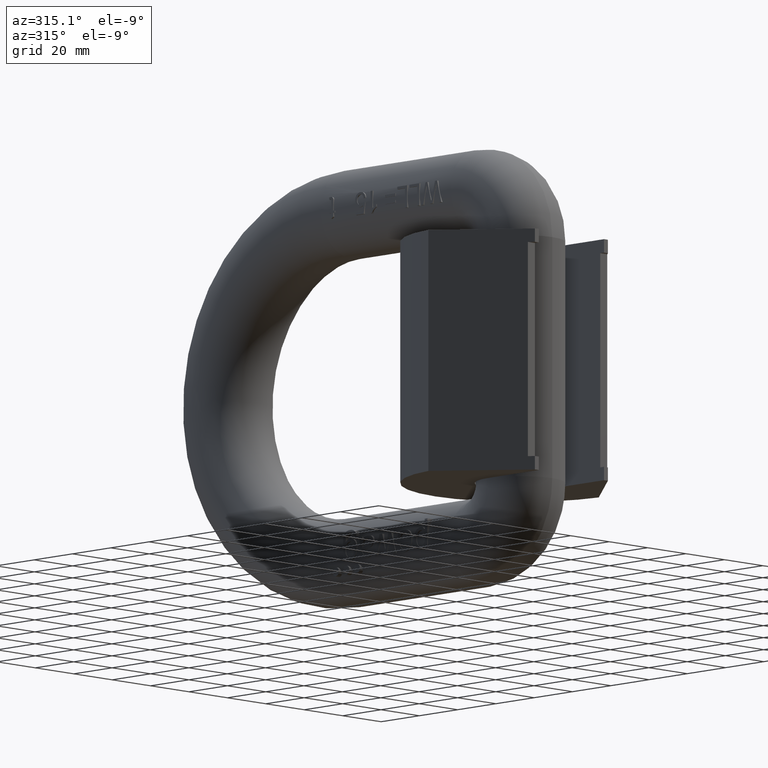
[diagram: clean part render]
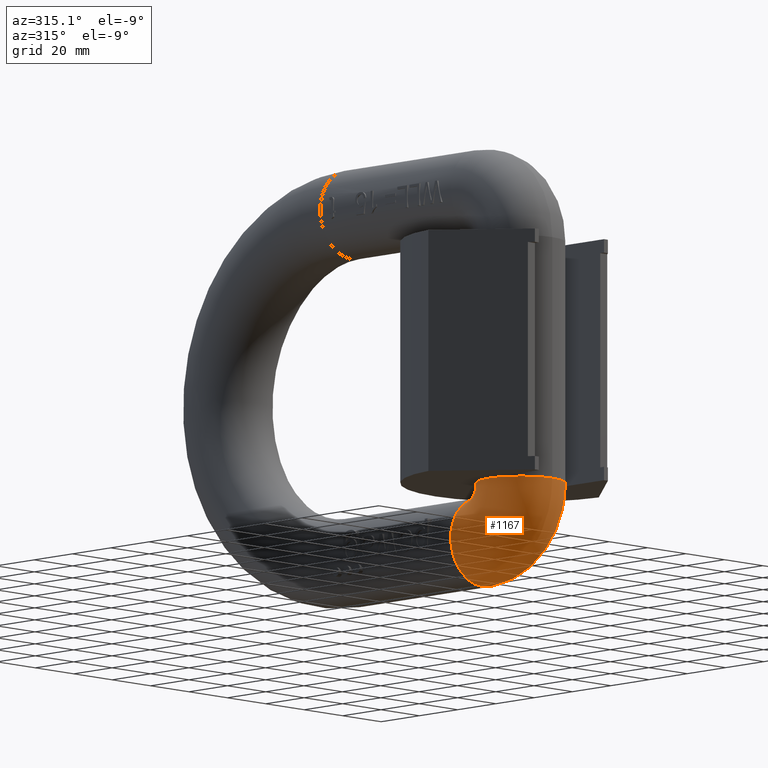
[diagram: same view with one face highlighted and labeled with its STEP entity id]
A machine part, auxiliary view. The second image highlights one B-rep face of the part: STEP entity #1167.
In plain terms, the highlighted toroidal blend (fillet) surface has major radius 20 mm and minor (blend) radius 16.5 mm.
Its self-contained STEP definition (entity closure, byte-faithful):
#175=TOROIDAL_SURFACE('',#7207,20.,16.5);
#883=FACE_BOUND('',#1966,.T.);
#884=FACE_BOUND('',#1967,.T.);
#1167=ADVANCED_FACE('',(#883,#884),#175,.T.);
#1966=EDGE_LOOP('',(#2794));
#1967=EDGE_LOOP('',(#2795));
#2351=CIRCLE('',#7121,16.5);
#2395=CIRCLE('',#7205,16.5);
#2794=ORIENTED_EDGE('',*,*,#5421,.F.);
#2795=ORIENTED_EDGE('',*,*,#5197,.T.);
#4507=VERTEX_POINT('',#9459);
#4731=VERTEX_POINT('',#10962);
#5197=EDGE_CURVE('',#4507,#4507,#2351,.T.);
#5421=EDGE_CURVE('',#4731,#4731,#2395,.T.);
#7121=AXIS2_PLACEMENT_3D('',#9458,#7557,#7558);
#7205=AXIS2_PLACEMENT_3D('',#10961,#7781,#7782);
#7207=AXIS2_PLACEMENT_3D('',#10964,#7785,#7786);
#7557=DIRECTION('',(0.,-1.,2.089831575765E-16));
#7558=DIRECTION('',(0.,0.,-1.));
#7781=DIRECTION('',(0.,-3.84905207103143E-15,1.));
#7782=DIRECTION('',(0.,-1.,-3.78485122031303E-15));
#7785=DIRECTION('',(-1.,0.,0.));
#7786=DIRECTION('',(0.,0.,1.));
#9458=CARTESIAN_POINT('',(0.,46.5,-65.));
#9459=CARTESIAN_POINT('',(0.,46.5,-81.5));
#10961=CARTESIAN_POINT('',(0.,26.5,-45.0000000000001));
#10962=CARTESIAN_POINT('',(0.,9.99999999999999,-45.0000000000001));
#10964=CARTESIAN_POINT('',(0.,46.5,-45.));